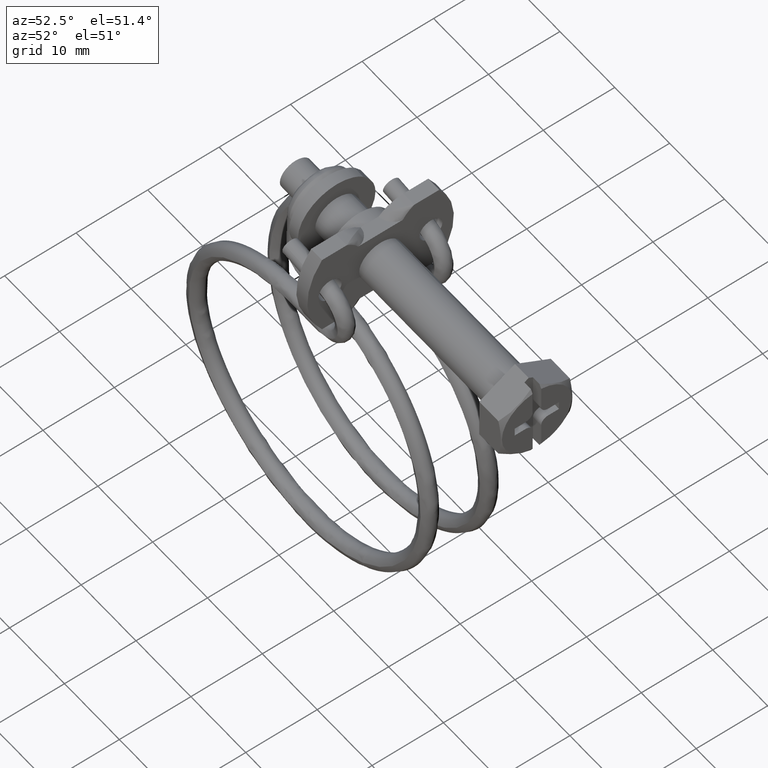
[diagram: clean part render]
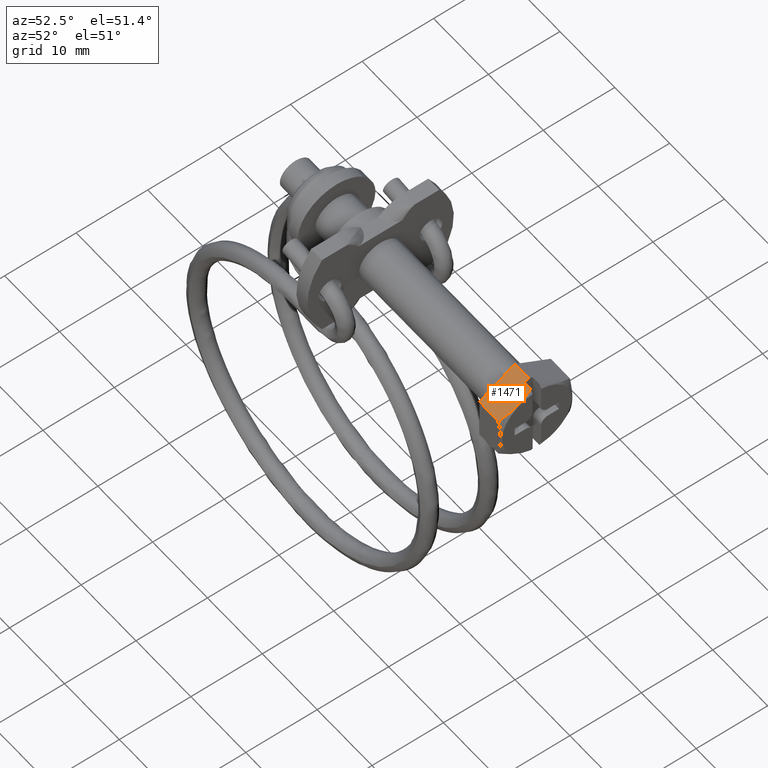
[diagram: same view with one face highlighted and labeled with its STEP entity id]
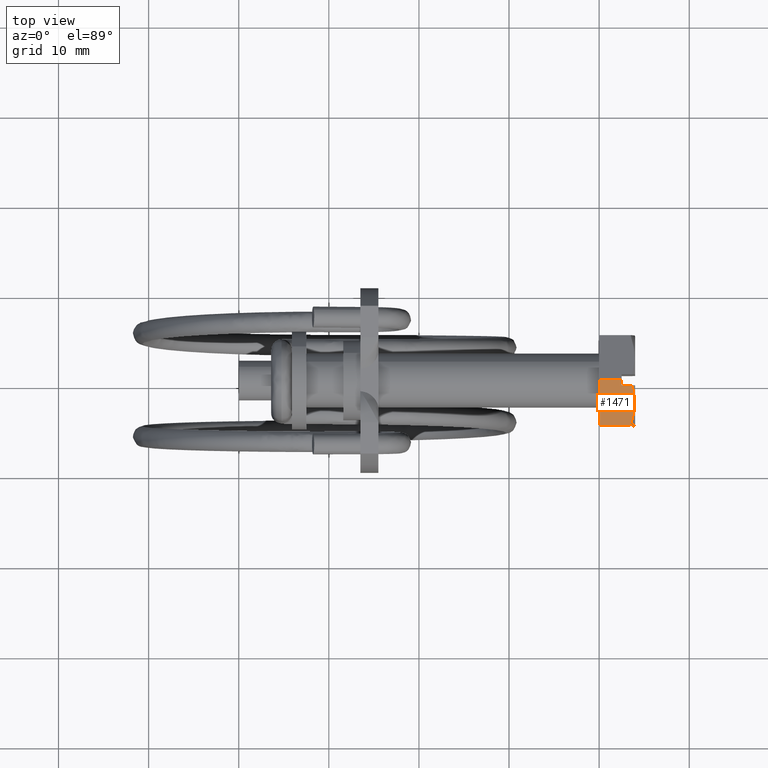
[diagram: same view with one face highlighted and labeled with its STEP entity id]
A machine part, auxiliary view. The second image highlights one B-rep face of the part: STEP entity #1471.
A second angle (top view) of the same face is appended — the face is thin or edge-on in the first view.
In plain terms, the highlighted face is a freeform B-spline surface patch.
Its self-contained STEP definition (entity closure, byte-faithful):
#704=CARTESIAN_POINT('',(0.0,0.0,5.773500999999901));
#705=VERTEX_POINT('',#704);
#734=CARTESIAN_POINT('',(0.0,-5.0,2.886751000000000));
#735=VERTEX_POINT('',#734);
#741=CARTESIAN_POINT('',(0.0,-5.0,2.886751000000000));
#742=CARTESIAN_POINT('',(0.0,0.0,5.773500999999901));
#743=QUASI_UNIFORM_CURVE('',1,(#741,#742),.UNSPECIFIED.,.F.,.U.);
#744=EDGE_CURVE('',#735,#705,#743,.T.);
#1186=CARTESIAN_POINT('',(3.676591883575675,-0.600000000000000,5.427090879999940));
#1187=VERTEX_POINT('',#1186);
#1199=CARTESIAN_POINT('',(2.499999999999860,-0.600000000000000,5.427090879999910));
#1200=VERTEX_POINT('',#1199);
#1206=CARTESIAN_POINT('',(3.676591883575675,-0.600000000000000,5.427090879999940));
#1207=CARTESIAN_POINT('',(2.499999999999860,-0.600000000000000,5.427090879999910));
#1208=QUASI_UNIFORM_CURVE('',1,(#1206,#1207),.UNSPECIFIED.,.F.,.U.);
#1209=EDGE_CURVE('',#1187,#1200,#1208,.T.);
#1303=CARTESIAN_POINT('',(2.499999999999835,-8.673617E-016,5.773500999999901));
#1304=VERTEX_POINT('',#1303);
#1310=CARTESIAN_POINT('',(2.499999999999835,-8.673617E-016,5.773500999999901));
#1311=CARTESIAN_POINT('',(2.499999999999860,-0.600000000000000,5.427090879999910));
#1312=QUASI_UNIFORM_CURVE('',1,(#1310,#1311),.UNSPECIFIED.,.F.,.U.);
#1313=EDGE_CURVE('',#1304,#1200,#1312,.T.);
#1387=CARTESIAN_POINT('',(3.495682214077680,-4.999999666913359,2.886750192307645));
#1388=VERTEX_POINT('',#1387);
#1389=CARTESIAN_POINT('',(3.495682214077680,-4.999999666913359,2.886750192307645));
#1390=CARTESIAN_POINT('',(3.615176256322118,-4.641517651197535,3.093719855777565));
#1391=CARTESIAN_POINT('',(3.716219195521697,-4.280740096721210,3.302014849009975));
#1392=CARTESIAN_POINT('',(3.867126806191993,-3.552817796767498,3.722280934472693));
#1393=CARTESIAN_POINT('',(3.916735374260974,-3.185641188951913,3.934270422430334));
#1394=CARTESIAN_POINT('',(3.939140187932509,-2.721742980121891,4.202102146077978));
#1395=CARTESIAN_POINT('',(3.941658735147628,-2.628719190302649,4.255809449734875));
#1396=CARTESIAN_POINT('',(3.942676749445386,-2.442171588838734,4.363512744749580));
#1397=CARTESIAN_POINT('',(3.941168486450068,-2.348481906758336,4.417604501436633));
#1398=CARTESIAN_POINT('',(3.930601366791727,-2.067928973137624,4.579581793773133));
#1399=CARTESIAN_POINT('',(3.915534254098203,-1.882044501837889,4.686902230454924));
#1400=CARTESIAN_POINT('',(3.848152077792157,-1.327572955010246,5.007026488910160));
#1401=CARTESIAN_POINT('',(3.773608111290232,-0.962174641485909,5.217989278303091));
#1402=CARTESIAN_POINT('',(3.676591883575696,-0.599999999999978,5.427090879999914));
#1403=B_SPLINE_CURVE_WITH_KNOTS('',3,(#1389,#1390,#1391,#1392,#1393,#1394,#1395,#1396,#1397,#1398,#1399,#1400,#1401,#1402),.UNSPECIFIED.,.F.,.U.,(4,2,2,2,2,2,4),(0.0,0.250000000000000,0.500000000000001,0.562500000000001,0.625000000000001,0.750000000000000,1.0),.UNSPECIFIED.);
#1404=EDGE_CURVE('',#1388,#1187,#1403,.T.);
#1450=CARTESIAN_POINT('',(-0.196915441517168,-5.249749640584708,2.742556995058495));
#1451=CARTESIAN_POINT('',(-0.196915441517168,0.249750107781800,5.917694274677726));
#1452=CARTESIAN_POINT('',(4.139166781613686,-5.249749640584708,2.742556995058495));
#1453=CARTESIAN_POINT('',(4.139166781613686,0.249750107781800,5.917694274677726));
#1454=B_SPLINE_SURFACE_WITH_KNOTS('',1,1,((#1450,#1452),(#1451,#1453)),.UNSPECIFIED.,.F.,.F.,.U.,(2,2),(2,2),(0.0,6.350275130001148),(0.0,4.336082223130854),.UNSPECIFIED.);
#1455=ORIENTED_EDGE('',*,*,#1404,.T.);
#1456=ORIENTED_EDGE('',*,*,#1209,.T.);
#1457=ORIENTED_EDGE('',*,*,#1313,.F.);
#1458=CARTESIAN_POINT('',(0.0,0.0,5.773500999999901));
#1459=CARTESIAN_POINT('',(2.499999999999835,-8.673617E-016,5.773500999999901));
#1460=QUASI_UNIFORM_CURVE('',1,(#1458,#1459),.UNSPECIFIED.,.F.,.U.);
#1461=EDGE_CURVE('',#705,#1304,#1460,.T.);
#1462=ORIENTED_EDGE('',*,*,#1461,.F.);
#1463=ORIENTED_EDGE('',*,*,#744,.F.);
#1464=CARTESIAN_POINT('',(0.0,-5.0,2.886751000000000));
#1465=CARTESIAN_POINT('',(3.495682214077680,-4.999999666913359,2.886750192307645));
#1466=QUASI_UNIFORM_CURVE('',1,(#1464,#1465),.UNSPECIFIED.,.F.,.U.);
#1467=EDGE_CURVE('',#735,#1388,#1466,.T.);
#1468=ORIENTED_EDGE('',*,*,#1467,.T.);
#1469=EDGE_LOOP('',(#1455,#1456,#1457,#1462,#1463,#1468));
#1470=FACE_OUTER_BOUND('',#1469,.T.);
#1471=ADVANCED_FACE('',(#1470),#1454,.F.);